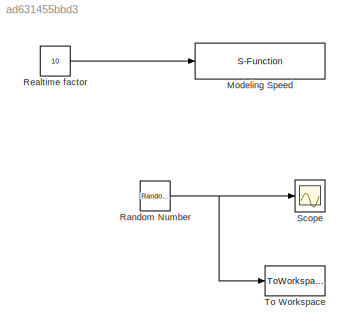
MODEL slx_ad631455bbd3
KIND model
BLOCK [S-Function] Modeling Speed
  EnableBusSupport = off
  FunctionName = modeling_speed
  Ports = [1]
BLOCK [RandomNumber] Random Number
  SampleTime = 0.1
  Variance = 10
BLOCK [Constant] Realtime factor
  Value = 10
BLOCK [Scope] Scope
  Floating = off
  MaxDataPoints = 50000
  NumInputPorts = 1
  Ports = [1]
  ShowLegends = off
  TimeRange = 30
  YMax = 2.5
  YMin = -2.5
BLOCK [ToWorkspace] To Workspace
  FixptAsFi = on
  MaxDataPoints = inf
  Ports = [1]
  SampleTime = -1
  Save2DSignal = 3-D array (concatenate along third dimension)
  VariableName = simout
NET Random Number:1 -> Scope:1, To Workspace:1
LINE Realtime factor:1 -> Modeling Speed:1
note: NET lines group one-source signal fan-out (src -> all destinations, sorted); 1:1 wires keep LINE
